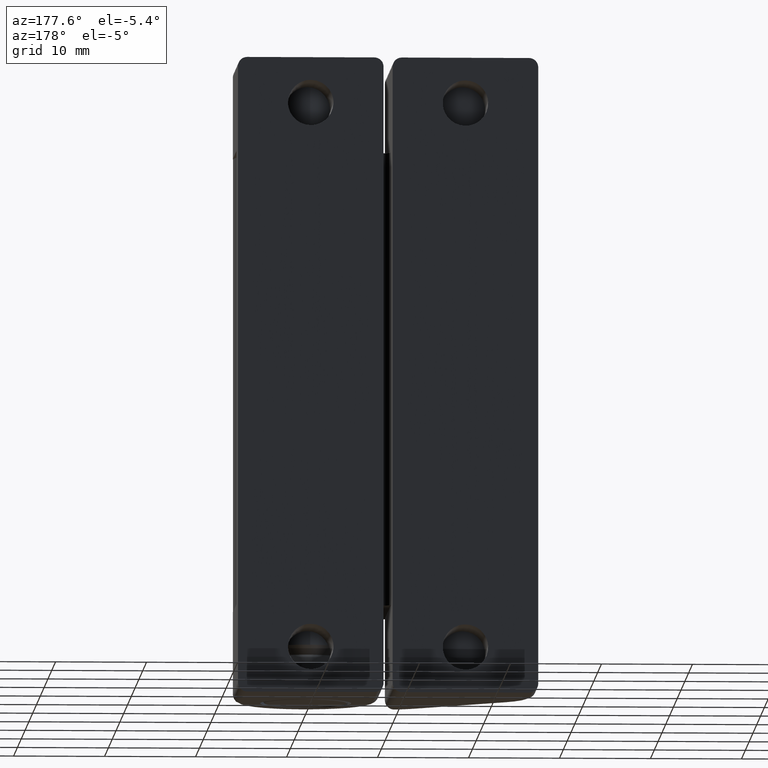
[diagram: clean part render]
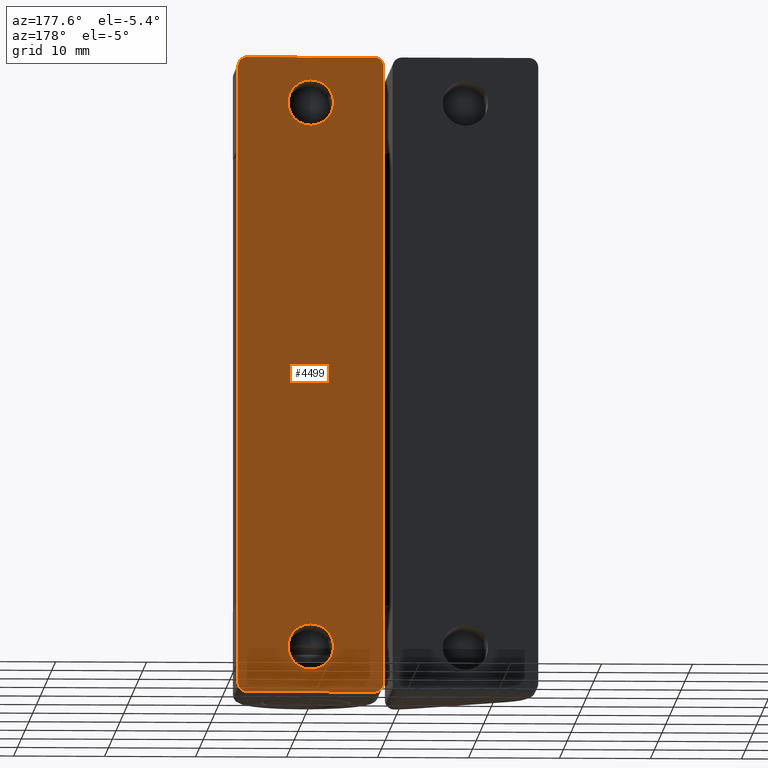
[diagram: same view with one face highlighted and labeled with its STEP entity id]
A machine part, auxiliary view. The second image highlights one B-rep face of the part: STEP entity #4499.
In plain terms, the highlighted face is a freeform B-spline surface patch.
Its self-contained STEP definition (entity closure, byte-faithful):
#2947=CARTESIAN_POINT('',(-2.499513546375393,13.500000000000000,64.950684368930183));
#2948=VERTEX_POINT('',#2947);
#2954=CARTESIAN_POINT('',(0.0,13.500000000000000,67.500000000000000));
#2955=VERTEX_POINT('',#2954);
#2956=CARTESIAN_POINT('',(0.0,13.500000000000000,67.500000000000000));
#2957=CARTESIAN_POINT('',(-2.500000000000000,13.500000000000000,67.500000000000000));
#2958=CARTESIAN_POINT('',(-2.500000000000000,13.500000000000000,65.0));
#2959=CARTESIAN_POINT('',(-2.500000000000000,13.499999999999996,64.975339785254889));
#2960=CARTESIAN_POINT('',(-2.499513546375393,13.500000000000000,64.950684368930183));
#2968=(BOUNDED_CURVE()B_SPLINE_CURVE(2,(#2956,#2957,#2958,#2959,#2960),.UNSPECIFIED.,.F.,.U.)B_SPLINE_CURVE_WITH_KNOTS((3,2,3),(0.0,0.250000000000000,0.253473289714700),.UNSPECIFIED.)CURVE()GEOMETRIC_REPRESENTATION_ITEM()RATIONAL_B_SPLINE_CURVE((1.0,0.707106781186548,1.0,0.995930787982360,0.991974644382702))REPRESENTATION_ITEM(''));
#2969=EDGE_CURVE('',#2955,#2948,#2968,.T.);
#2971=CARTESIAN_POINT('',(2.488490495900132,13.500000000000000,64.760385618514420));
#2972=VERTEX_POINT('',#2971);
#2973=CARTESIAN_POINT('',(2.488490495900132,13.500000000000000,64.760385618514420));
#2974=CARTESIAN_POINT('',(2.500000000000000,13.499999999999996,64.879916388600734));
#2975=CARTESIAN_POINT('',(2.500000000000000,13.500000000000000,65.0));
#2976=CARTESIAN_POINT('',(2.500000000000000,13.500000000000000,67.500000000000000));
#2977=CARTESIAN_POINT('',(0.0,13.500000000000000,67.500000000000000));
#2985=(BOUNDED_CURVE()B_SPLINE_CURVE(2,(#2973,#2974,#2975,#2976,#2977),.UNSPECIFIED.,.F.,.U.)B_SPLINE_CURVE_WITH_KNOTS((3,2,3),(0.733348904740112,0.750000000000000,1.0),.UNSPECIFIED.)CURVE()GEOMETRIC_REPRESENTATION_ITEM()RATIONAL_B_SPLINE_CURVE((0.963582689641313,0.980492028450248,1.0,0.707106781186548,1.0))REPRESENTATION_ITEM(''));
#2986=EDGE_CURVE('',#2972,#2955,#2985,.T.);
#3136=CARTESIAN_POINT('',(0.0,13.500000000000000,62.500000000000000));
#3137=VERTEX_POINT('',#3136);
#3138=CARTESIAN_POINT('',(0.0,13.500000000000000,62.500000000000000));
#3139=CARTESIAN_POINT('',(2.270840115794740,13.500000000000002,62.500000000000000));
#3140=CARTESIAN_POINT('',(2.488490495900132,13.499999999999998,64.760385618514420));
#3148=(BOUNDED_CURVE()B_SPLINE_CURVE(2,(#3138,#3139,#3140),.UNSPECIFIED.,.F.,.U.)B_SPLINE_CURVE_WITH_KNOTS((3,3),(0.500000000000000,0.733348904740112),.UNSPECIFIED.)CURVE()GEOMETRIC_REPRESENTATION_ITEM()RATIONAL_B_SPLINE_CURVE((1.0,0.726614752736300,0.963582689641312))REPRESENTATION_ITEM(''));
#3149=EDGE_CURVE('',#3137,#2972,#3148,.T.);
#3151=CARTESIAN_POINT('',(-2.499513546375393,13.500000000000004,64.950684368930183));
#3152=CARTESIAN_POINT('',(-2.451161319449899,13.499999999999998,62.499999999999986));
#3153=CARTESIAN_POINT('',(0.0,13.500000000000000,62.500000000000000));
#3161=(BOUNDED_CURVE()B_SPLINE_CURVE(2,(#3151,#3152,#3153),.UNSPECIFIED.,.F.,.U.)B_SPLINE_CURVE_WITH_KNOTS((3,3),(0.253473289714700,0.500000000000000),.UNSPECIFIED.)CURVE()GEOMETRIC_REPRESENTATION_ITEM()RATIONAL_B_SPLINE_CURVE((0.991974644382701,0.711175993204188,1.0))REPRESENTATION_ITEM(''));
#3162=EDGE_CURVE('',#2948,#3137,#3161,.T.);
#3233=CARTESIAN_POINT('',(-2.499513546375393,13.500000000000000,4.950684368930197));
#3234=VERTEX_POINT('',#3233);
#3240=CARTESIAN_POINT('',(0.0,13.500000000000000,7.500000000000000));
#3241=VERTEX_POINT('',#3240);
#3242=CARTESIAN_POINT('',(0.0,13.500000000000000,7.500000000000000));
#3243=CARTESIAN_POINT('',(-2.500000000000000,13.500000000000000,7.500000000000000));
#3244=CARTESIAN_POINT('',(-2.500000000000000,13.500000000000000,5.0));
#3245=CARTESIAN_POINT('',(-2.500000000000000,13.500000000000000,4.975339785254911));
#3246=CARTESIAN_POINT('',(-2.499513546375393,13.499999999999998,4.950684368930197));
#3254=(BOUNDED_CURVE()B_SPLINE_CURVE(2,(#3242,#3243,#3244,#3245,#3246),.UNSPECIFIED.,.F.,.U.)B_SPLINE_CURVE_WITH_KNOTS((3,2,3),(0.0,0.250000000000000,0.253473289714699),.UNSPECIFIED.)CURVE()GEOMETRIC_REPRESENTATION_ITEM()RATIONAL_B_SPLINE_CURVE((1.0,0.707106781186548,1.0,0.995930787982361,0.991974644382704))REPRESENTATION_ITEM(''));
#3255=EDGE_CURVE('',#3241,#3234,#3254,.T.);
#3257=CARTESIAN_POINT('',(2.488490495900131,13.500000000000000,4.760385618514423));
#3258=VERTEX_POINT('',#3257);
#3259=CARTESIAN_POINT('',(2.488490495900131,13.500000000000002,4.760385618514423));
#3260=CARTESIAN_POINT('',(2.500000000000000,13.499999999999996,4.879916388600731));
#3261=CARTESIAN_POINT('',(2.500000000000000,13.500000000000000,5.0));
#3262=CARTESIAN_POINT('',(2.500000000000000,13.500000000000000,7.500000000000000));
#3263=CARTESIAN_POINT('',(0.0,13.500000000000000,7.500000000000000));
#3271=(BOUNDED_CURVE()B_SPLINE_CURVE(2,(#3259,#3260,#3261,#3262,#3263),.UNSPECIFIED.,.F.,.U.)B_SPLINE_CURVE_WITH_KNOTS((3,2,3),(0.733348904740112,0.750000000000000,1.0),.UNSPECIFIED.)CURVE()GEOMETRIC_REPRESENTATION_ITEM()RATIONAL_B_SPLINE_CURVE((0.963582689641312,0.980492028450248,1.0,0.707106781186548,1.0))REPRESENTATION_ITEM(''));
#3272=EDGE_CURVE('',#3258,#3241,#3271,.T.);
#3422=CARTESIAN_POINT('',(0.0,13.500000000000000,2.500000000000000));
#3423=VERTEX_POINT('',#3422);
#3424=CARTESIAN_POINT('',(0.0,13.500000000000000,2.500000000000000));
#3425=CARTESIAN_POINT('',(2.270840115794740,13.500000000000002,2.500000000000000));
#3426=CARTESIAN_POINT('',(2.488490495900132,13.499999999999998,4.760385618514424));
#3434=(BOUNDED_CURVE()B_SPLINE_CURVE(2,(#3424,#3425,#3426),.UNSPECIFIED.,.F.,.U.)B_SPLINE_CURVE_WITH_KNOTS((3,3),(0.500000000000000,0.733348904740112),.UNSPECIFIED.)CURVE()GEOMETRIC_REPRESENTATION_ITEM()RATIONAL_B_SPLINE_CURVE((1.0,0.726614752736300,0.963582689641312))REPRESENTATION_ITEM(''));
#3435=EDGE_CURVE('',#3423,#3258,#3434,.T.);
#3437=CARTESIAN_POINT('',(-2.499513546375393,13.500000000000005,4.950684368930197));
#3438=CARTESIAN_POINT('',(-2.451161319449916,13.500000000000002,2.500000000000000));
#3439=CARTESIAN_POINT('',(0.0,13.500000000000000,2.500000000000000));
#3447=(BOUNDED_CURVE()B_SPLINE_CURVE(2,(#3437,#3438,#3439),.UNSPECIFIED.,.F.,.U.)B_SPLINE_CURVE_WITH_KNOTS((3,3),(0.253473289714699,0.500000000000000),.UNSPECIFIED.)CURVE()GEOMETRIC_REPRESENTATION_ITEM()RATIONAL_B_SPLINE_CURVE((0.991974644382704,0.711175993204187,1.0))REPRESENTATION_ITEM(''));
#3448=EDGE_CURVE('',#3234,#3423,#3447,.T.);
#3852=CARTESIAN_POINT('',(-6.999999999999800,13.500000000000000,0.0));
#3853=VERTEX_POINT('',#3852);
#3854=CARTESIAN_POINT('',(-7.999999999999799,13.500000000000000,1.0));
#3855=VERTEX_POINT('',#3854);
#3856=CARTESIAN_POINT('',(-6.999999999999800,13.500000000000000,0.0));
#3857=CARTESIAN_POINT('',(-7.999999999999800,13.500000000000000,0.0));
#3858=CARTESIAN_POINT('',(-7.999999999999799,13.500000000000000,1.0));
#3866=(BOUNDED_CURVE()B_SPLINE_CURVE(2,(#3856,#3857,#3858),.UNSPECIFIED.,.F.,.U.)CURVE()GEOMETRIC_REPRESENTATION_ITEM()QUASI_UNIFORM_CURVE()RATIONAL_B_SPLINE_CURVE((1.0,0.707106781186548,1.0))REPRESENTATION_ITEM(''));
#3867=EDGE_CURVE('',#3853,#3855,#3866,.T.);
#3987=CARTESIAN_POINT('',(8.000000000000199,13.500000000000000,1.0));
#3988=VERTEX_POINT('',#3987);
#3989=CARTESIAN_POINT('',(7.000000000000201,13.500000000000000,0.0));
#3990=VERTEX_POINT('',#3989);
#3991=CARTESIAN_POINT('',(8.000000000000201,13.500000000000000,1.0));
#3992=CARTESIAN_POINT('',(8.000000000000201,13.500000000000000,0.0));
#3993=CARTESIAN_POINT('',(7.000000000000201,13.500000000000000,0.0));
#4001=(BOUNDED_CURVE()B_SPLINE_CURVE(2,(#3991,#3992,#3993),.UNSPECIFIED.,.F.,.U.)CURVE()GEOMETRIC_REPRESENTATION_ITEM()QUASI_UNIFORM_CURVE()RATIONAL_B_SPLINE_CURVE((1.0,0.707106781186548,1.0))REPRESENTATION_ITEM(''));
#4002=EDGE_CURVE('',#3988,#3990,#4001,.T.);
#4032=CARTESIAN_POINT('',(-7.999999999999799,13.500000000000000,69.0));
#4033=VERTEX_POINT('',#4032);
#4034=CARTESIAN_POINT('',(-6.999999999999800,13.500000000000000,70.0));
#4035=VERTEX_POINT('',#4034);
#4036=CARTESIAN_POINT('',(-7.999999999999799,13.500000000000000,69.0));
#4037=CARTESIAN_POINT('',(-7.999999999999800,13.500000000000000,70.0));
#4038=CARTESIAN_POINT('',(-6.999999999999800,13.500000000000000,70.0));
#4046=(BOUNDED_CURVE()B_SPLINE_CURVE(2,(#4036,#4037,#4038),.UNSPECIFIED.,.F.,.U.)CURVE()GEOMETRIC_REPRESENTATION_ITEM()QUASI_UNIFORM_CURVE()RATIONAL_B_SPLINE_CURVE((1.0,0.707106781186548,1.0))REPRESENTATION_ITEM(''));
#4047=EDGE_CURVE('',#4033,#4035,#4046,.T.);
#4167=CARTESIAN_POINT('',(7.000000000000201,13.500000000000000,70.0));
#4168=VERTEX_POINT('',#4167);
#4169=CARTESIAN_POINT('',(8.000000000000199,13.500000000000000,69.0));
#4170=VERTEX_POINT('',#4169);
#4171=CARTESIAN_POINT('',(7.000000000000201,13.500000000000000,70.0));
#4172=CARTESIAN_POINT('',(8.000000000000201,13.500000000000000,70.0));
#4173=CARTESIAN_POINT('',(8.000000000000201,13.500000000000000,69.0));
#4181=(BOUNDED_CURVE()B_SPLINE_CURVE(2,(#4171,#4172,#4173),.UNSPECIFIED.,.F.,.U.)CURVE()GEOMETRIC_REPRESENTATION_ITEM()QUASI_UNIFORM_CURVE()RATIONAL_B_SPLINE_CURVE((1.0,0.707106781186548,1.0))REPRESENTATION_ITEM(''));
#4182=EDGE_CURVE('',#4168,#4170,#4181,.T.);
#4329=CARTESIAN_POINT('',(7.000000000000201,13.500000000000000,0.0));
#4330=CARTESIAN_POINT('',(-6.999999999999800,13.500000000000000,0.0));
#4331=QUASI_UNIFORM_CURVE('',1,(#4329,#4330),.UNSPECIFIED.,.F.,.U.);
#4332=EDGE_CURVE('',#3990,#3853,#4331,.T.);
#4349=CARTESIAN_POINT('',(7.000000000000201,13.500000000000000,70.0));
#4350=CARTESIAN_POINT('',(-6.999999999999800,13.500000000000000,70.0));
#4351=QUASI_UNIFORM_CURVE('',1,(#4349,#4350),.UNSPECIFIED.,.F.,.U.);
#4352=EDGE_CURVE('',#4168,#4035,#4351,.T.);
#4437=CARTESIAN_POINT('',(-7.999999999999799,13.500000000000000,69.0));
#4438=CARTESIAN_POINT('',(-7.999999999999799,13.500000000000000,1.0));
#4439=QUASI_UNIFORM_CURVE('',1,(#4437,#4438),.UNSPECIFIED.,.F.,.U.);
#4440=EDGE_CURVE('',#4033,#3855,#4439,.T.);
#4459=CARTESIAN_POINT('',(8.000000000000199,13.500000000000000,69.0));
#4460=CARTESIAN_POINT('',(8.000000000000199,13.500000000000000,1.0));
#4461=QUASI_UNIFORM_CURVE('',1,(#4459,#4460),.UNSPECIFIED.,.F.,.U.);
#4462=EDGE_CURVE('',#4170,#3988,#4461,.T.);
#4472=CARTESIAN_POINT('',(-8.799199968988694,13.500000000000000,73.496499864326410));
#4473=CARTESIAN_POINT('',(-8.799199968988694,13.500000000000000,-3.496501741872728));
#4474=CARTESIAN_POINT('',(8.799200398142537,13.500000000000000,73.496499864326410));
#4475=CARTESIAN_POINT('',(8.799200398142537,13.500000000000000,-3.496501741872728));
#4476=B_SPLINE_SURFACE_WITH_KNOTS('',1,1,((#4472,#4474),(#4473,#4475)),.UNSPECIFIED.,.F.,.F.,.U.,(2,2),(2,2),(0.0,76.993001606199144),(0.0,17.598400367131230),.UNSPECIFIED.);
#4477=ORIENTED_EDGE('',*,*,#4332,.T.);
#4478=ORIENTED_EDGE('',*,*,#3867,.T.);
#4479=ORIENTED_EDGE('',*,*,#4440,.F.);
#4480=ORIENTED_EDGE('',*,*,#4047,.T.);
#4481=ORIENTED_EDGE('',*,*,#4352,.F.);
#4482=ORIENTED_EDGE('',*,*,#4182,.T.);
#4483=ORIENTED_EDGE('',*,*,#4462,.T.);
#4484=ORIENTED_EDGE('',*,*,#4002,.T.);
#4485=EDGE_LOOP('',(#4477,#4478,#4479,#4480,#4481,#4482,#4483,#4484));
#4486=FACE_OUTER_BOUND('',#4485,.T.);
#4487=ORIENTED_EDGE('',*,*,#3435,.T.);
#4488=ORIENTED_EDGE('',*,*,#3272,.T.);
#4489=ORIENTED_EDGE('',*,*,#3255,.T.);
#4490=ORIENTED_EDGE('',*,*,#3448,.T.);
#4491=EDGE_LOOP('',(#4487,#4488,#4489,#4490));
#4492=FACE_BOUND('',#4491,.T.);
#4493=ORIENTED_EDGE('',*,*,#3149,.T.);
#4494=ORIENTED_EDGE('',*,*,#2986,.T.);
#4495=ORIENTED_EDGE('',*,*,#2969,.T.);
#4496=ORIENTED_EDGE('',*,*,#3162,.T.);
#4497=EDGE_LOOP('',(#4493,#4494,#4495,#4496));
#4498=FACE_BOUND('',#4497,.T.);
#4499=ADVANCED_FACE('',(#4486,#4492,#4498),#4476,.F.);